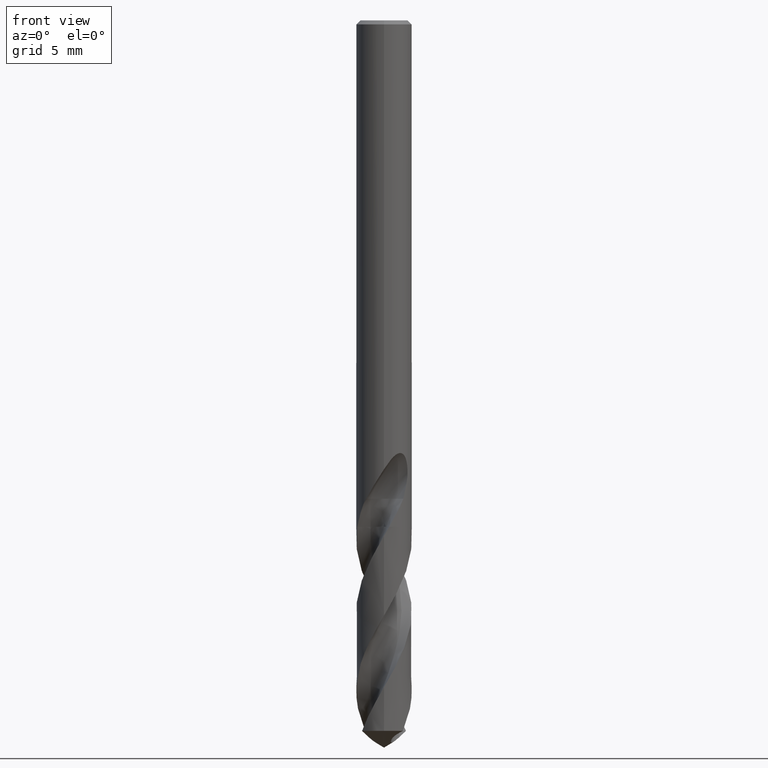
[diagram: clean part render]
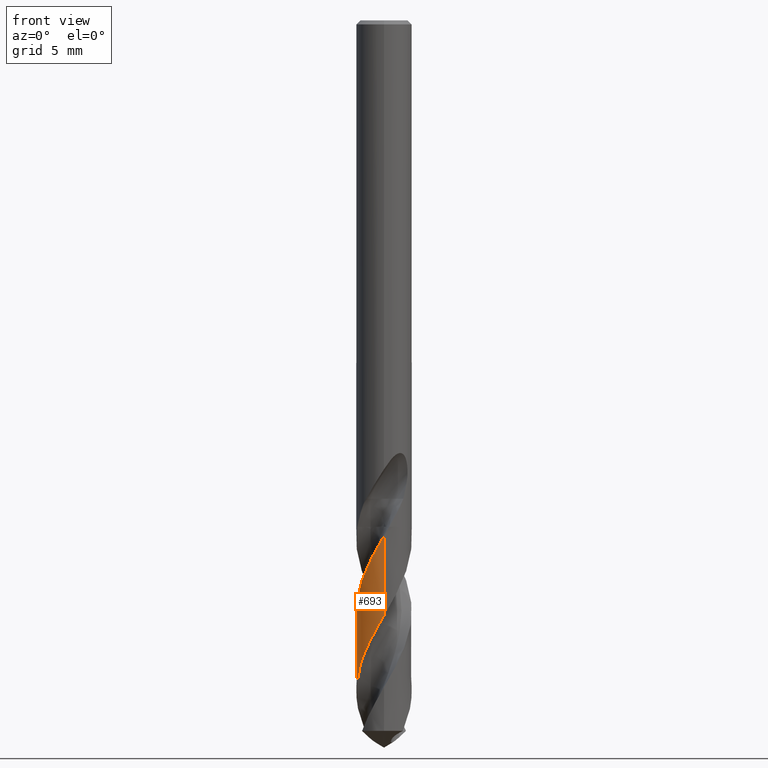
[diagram: same view with one face highlighted and labeled with its STEP entity id]
A machine part, front view. The second image highlights one B-rep face of the part: STEP entity #693.
In plain terms, the highlighted conical surface has half-angle 0 deg.
Its self-contained STEP definition (entity closure, byte-faithful):
#273=EDGE_CURVE('',#439,#403,#765,.T.);
#403=VERTEX_POINT('',#913);
#439=VERTEX_POINT('',#950);
#491=VERTEX_POINT('',#1006);
#565=EDGE_CURVE('',#725,#491,#1086,.T.);
#609=EDGE_CURVE('',#725,#701,#1131,.T.);
#631=EDGE_CURVE('',#403,#701,#1155,.T.);
#689=EDGE_CURVE('',#491,#439,#1219,.T.);
#693=ADVANCED_FACE('',(#1224),#1225,.T.);
#701=VERTEX_POINT('',#1233);
#725=VERTEX_POINT('',#1258);
#765=B_SPLINE_CURVE_WITH_KNOTS('',3,(#1292,#1293,#1294,#1295,#1296,#1297,#1298,#1299,#1300,#1301,#1302,#1303,#1304,#1305,#1306,#1307,#1308,#1309,#1310,#1311,#1312,#1313,#1314,#1315,#1316,#1317,#1318,#1319,#1320,#1321,#1322,#1323,#1324,#1325,#1326,#1327,#1328,#1329,#1330,#1331,#1332,#1333,#1334,#1335,#1336,#1337,#1338,#1339,#1340,#1341,#1342,#1343,#1344,#1345),.UNSPECIFIED.,.F.,.F.,(4,2,2,2,2,2,2,2,2,2,2,2,2,2,2,2,2,2,2,2,2,2,2,2,2,2,4),(0.0,0.503909517574483,1.13278829859474,1.95331177845155,2.7691083189169,3.17418708438028,3.98540678216723,4.80004578718783,5.61705186428529,5.81836232337109,6.62775542031261,7.44499740375023,8.26058421103626,8.66412830215472,9.47658145994464,10.2886939642005,11.1063820422001,11.2067594291098,12.0003007831243,12.7277738410954,13.3615420971519,14.4769491370103,14.8951127221257,15.626291945844,16.1753774852233,17.0001347180208,17.8248516723183),.UNSPECIFIED.);
#913=CARTESIAN_POINT('',(-1.80224234868949E-012,2.09997855743736,-50.4278485601338));
#950=CARTESIAN_POINT('',(-1.36379404528717E-014,-2.09990444357236,-38.9860072637857));
#1006=CARTESIAN_POINT('',(1.30074145295058E-014,-2.0999434989582,-45.0154529889263));
#1086=B_SPLINE_CURVE_WITH_KNOTS('',3,(#4738,#4739,#4740,#4741,#4742,#4743,#4744,#4745,#4746,#4747,#4748,#4749,#4750,#4751,#4752,#4753,#4754,#4755,#4756,#4757,#4758,#4759,#4760,#4761,#4762,#4763,#4764,#4765,#4766,#4767,#4768,#4769,#4770,#4771,#4772,#4773,#4774,#4775,#4776,#4777,#4778,#4779,#4780,#4781,#4782,#4783,#4784,#4785,#4786,#4787,#4788,#4789,#4790,#4791,#4792,#4793,#4794,#4795,#4796,#4797,#4798,#4799,#4800,#4801,#4802,#4803,#4804,#4805,#4806,#4807,#4808,#4809,#4810,#4811),.UNSPECIFIED.,.F.,.F.,(4,2,2,2,2,2,2,2,2,2,2,2,2,2,2,2,2,2,2,2,2,2,2,2,2,2,2,2,2,2,2,2,2,2,2,2,4),(0.0,1.23625972292761,1.28090321037564,1.97511493637118,2.3840890977892,2.79224867802999,3.47174308860152,3.8120364301856,4.15063406902024,4.83041698696505,5.170846193326,5.50962474233837,6.18969503071297,6.53030297834813,6.86930156829632,7.54976232675562,7.89055696891206,8.22975320464369,8.91059984628346,9.25161203428264,9.59105219666649,10.272348982676,10.6136108251922,10.9533446528941,11.6351623398099,11.9766777413867,12.3166696129387,12.9990374819741,13.3054847538729,13.8777061850719,14.884091522244,14.9310911833174,15.6738396568611,16.2313276549158,16.3356349820193,17.1189991023162,17.9004014585408),.UNSPECIFIED.);
#1131=CIRCLE('',#5145,2.1);
#1155=LINE('',#5218,#5219);
#1219=LINE('',#6485,#6486);
#1224=FACE_OUTER_BOUND('',#6491,.T.);
#1225=CONICAL_SURFACE('',#6492,2.09995,6.47744214246915E-006);
#1233=CARTESIAN_POINT('',(-2.56672861744003E-016,2.1,-53.7381927000421));
#1258=CARTESIAN_POINT('',(-1.42649737981016,1.54113763999026,-53.7381927000421));
#1292=CARTESIAN_POINT('',(0.390569997594199,-2.06325839454656,-38.3042526002693));
#1293=CARTESIAN_POINT('',(0.308017328981765,-2.07888638085567,-38.449699119055));
#1294=CARTESIAN_POINT('',(0.224716797414785,-2.08952430822792,-38.5951383021161));
#1295=CARTESIAN_POINT('',(0.0367738684099087,-2.10218470287974,-38.9223348117959));
#1296=CARTESIAN_POINT('',(-0.0679943574266461,-2.10141253859432,-39.1038875286953));
#1297=CARTESIAN_POINT('',(-0.308420420629415,-2.08161981260738,-39.5224390327178));
#1298=CARTESIAN_POINT('',(-0.443125251478291,-2.05716336356693,-39.7583208125454));
#1299=CARTESIAN_POINT('',(-0.705158400106131,-1.98263238746144,-40.2307940643223));
#1300=CARTESIAN_POINT('',(-0.831902417006057,-1.93288220866722,-40.4658503427265));
#1301=CARTESIAN_POINT('',(-1.0130741240081,-1.84061942150497,-40.8183438752922));
#1302=CARTESIAN_POINT('',(-1.07165398331752,-1.80713978354698,-40.9351926608393));
#1303=CARTESIAN_POINT('',(-1.24236193478339,-1.6983594475139,-41.2864610908847));
#1304=CARTESIAN_POINT('',(-1.34899979536947,-1.61496761203563,-41.5203685107646));
#1305=CARTESIAN_POINT('',(-1.54524320417646,-1.42839463975181,-41.9898332983309));
#1306=CARTESIAN_POINT('',(-1.63425164651977,-1.32562957028781,-42.2243981313254));
#1307=CARTESIAN_POINT('',(-1.79139311922352,-1.10412984435196,-42.6956394447378));
#1308=CARTESIAN_POINT('',(-1.8591471768903,-0.985797808151183,-42.930975937371));
#1309=CARTESIAN_POINT('',(-1.92875098901316,-0.831118518378167,-43.2250018358748));
#1310=CARTESIAN_POINT('',(-1.94177287670343,-0.800223200289188,-43.2831057114801));
#1311=CARTESIAN_POINT('',(-2.00340353928966,-0.643630058372398,-43.5750011538261));
#1312=CARTESIAN_POINT('',(-2.04058122880582,-0.513741692568061,-43.8084848827808));
#1313=CARTESIAN_POINT('',(-2.08976059917131,-0.247325392888569,-44.2782629886076));
#1314=CARTESIAN_POINT('',(-2.10139018086837,-0.11142495336553,-44.5135340097885));
#1315=CARTESIAN_POINT('',(-2.09820825033845,0.160363000775788,-44.9851936857589));
#1316=CARTESIAN_POINT('',(-2.08345659791678,0.295700461871953,-45.2202185243422));
#1317=CARTESIAN_POINT('',(-2.04199424879412,0.494527167725195,-45.5722820178483));
#1318=CARTESIAN_POINT('',(-2.02512257635464,0.55961889771996,-45.6887212518613));
#1319=CARTESIAN_POINT('',(-1.9649898299328,0.752928517137824,-46.0399799950333));
#1320=CARTESIAN_POINT('',(-1.91241331019603,0.877947662392781,-46.2742468743428));
#1321=CARTESIAN_POINT('',(-1.78391237756426,1.11614103097192,-46.7434441908355));
#1322=CARTESIAN_POINT('',(-1.70833866832319,1.22868832413268,-46.9774472691566));
#1323=CARTESIAN_POINT('',(-1.53608485396776,1.43833375736206,-47.448269252438));
#1324=CARTESIAN_POINT('',(-1.43960923739679,1.53490051405826,-47.6838124251385));
#1325=CARTESIAN_POINT('',(-1.32150722229206,1.63209706794024,-47.9489523292886));
#1326=CARTESIAN_POINT('',(-1.30847043446765,1.64256749154625,-47.9779373287673));
#1327=CARTESIAN_POINT('',(-1.1912730174795,1.73441352718902,-48.2361479499733));
#1328=CARTESIAN_POINT('',(-1.0797589536874,1.80594882725479,-48.4651641484731));
#1329=CARTESIAN_POINT('',(-0.854553728601669,1.92205407898775,-48.9045503267968));
#1330=CARTESIAN_POINT('',(-0.742261005782644,1.96814586874391,-49.1140479251563));
#1331=CARTESIAN_POINT('',(-0.525909641333397,2.03579030658126,-49.507339454028));
#1332=CARTESIAN_POINT('',(-0.422928295383579,2.05965249761215,-49.6902925328945));
#1333=CARTESIAN_POINT('',(-0.134908088137453,2.10386084279632,-50.1956201899306));
#1334=CARTESIAN_POINT('',(0.0516646706071843,2.10754555445554,-50.5163525505894));
#1335=CARTESIAN_POINT('',(0.30543875794485,2.07881726228552,-50.9594372772372));
#1336=CARTESIAN_POINT('',(0.37422279021143,2.06754445777166,-51.0801652060103));
#1337=CARTESIAN_POINT('',(0.56144113566867,2.02720611613326,-51.4121744287994));
#1338=CARTESIAN_POINT('',(0.678040337001556,1.9912372771231,-51.6229029169465));
#1339=CARTESIAN_POINT('',(0.875520498819515,1.91096184146802,-51.9928350238206));
#1340=CARTESIAN_POINT('',(0.957902075011818,1.87102879249249,-52.1513464301706));
#1341=CARTESIAN_POINT('',(1.15690667055529,1.75795759471379,-52.5482463852867));
#1342=CARTESIAN_POINT('',(1.26941257733474,1.67852228734416,-52.7858535933192));
#1343=CARTESIAN_POINT('',(1.47725957618053,1.49885310389707,-53.2624188558046));
#1344=CARTESIAN_POINT('',(1.57214712188489,1.39901384181612,-53.4999757726785));
#1345=CARTESIAN_POINT('',(1.65662077604711,1.29058421049116,-53.7381927000421));
#4738=CARTESIAN_POINT('',(-1.42649737981016,1.54113763999026,-53.7381927000421));
#4739=CARTESIAN_POINT('',(-1.57695963547069,1.40186463132384,-53.3807301378004));
#4740=CARTESIAN_POINT('',(-1.70625555040632,1.24129005580703,-53.0293134092204));
#4741=CARTESIAN_POINT('',(-1.81403925200662,1.05796369603176,-52.6594367115552));
#4742=CARTESIAN_POINT('',(-1.81775758415094,1.05156197003925,-52.6465537494186));
#4743=CARTESIAN_POINT('',(-1.87879164116603,0.945189935453131,-52.4332394713616));
#4744=CARTESIAN_POINT('',(-1.92791238872987,0.840527311451122,-52.2338000763874));
#4745=CARTESIAN_POINT('',(-1.99198013429963,0.66828655964907,-51.9157455652368));
#4746=CARTESIAN_POINT('',(-2.01258782056809,0.603374998298269,-51.7980066051716));
#4747=CARTESIAN_POINT('',(-2.04737025013092,0.472039583868538,-51.5622762686134));
#4748=CARTESIAN_POINT('',(-2.06153181722622,0.405726798596233,-51.444209904945));
#4749=CARTESIAN_POINT('',(-2.09066250873509,0.227553600222249,-51.1305784864097));
#4750=CARTESIAN_POINT('',(-2.09988608488912,0.114830844412168,-50.9356141501241));
#4751=CARTESIAN_POINT('',(-2.10002678840179,-0.0548590825056493,-50.6418465304335));
#4752=CARTESIAN_POINT('',(-2.0977834526929,-0.111399099600811,-50.5439079645802));
#4753=CARTESIAN_POINT('',(-2.0887800573786,-0.223754302804554,-50.3481971439892));
#4754=CARTESIAN_POINT('',(-2.08204988465575,-0.279516762296138,-50.2503728293071));
#4755=CARTESIAN_POINT('',(-2.05509471999118,-0.446323204897777,-49.9568442280061));
#4756=CARTESIAN_POINT('',(-2.02814153083882,-0.55616234144262,-49.761871057212));
#4757=CARTESIAN_POINT('',(-1.97453338334247,-0.717152402691944,-49.4681023610114));
#4758=CARTESIAN_POINT('',(-1.95449948014606,-0.770067979609093,-49.3701643658867));
#4759=CARTESIAN_POINT('',(-1.91037407804928,-0.873789214607527,-49.1744441489832));
#4760=CARTESIAN_POINT('',(-1.88632768804101,-0.924552415493039,-49.0766078507017));
#4761=CARTESIAN_POINT('',(-1.80793616589045,-1.07422082498457,-48.7830796780434));
#4762=CARTESIAN_POINT('',(-1.74758831670783,-1.16986200662086,-48.5881162685079));
#4763=CARTESIAN_POINT('',(-1.64575179937315,-1.30558769415783,-48.2943594190237));
#4764=CARTESIAN_POINT('',(-1.60998647372268,-1.34943891313401,-48.1964196726624));
#4765=CARTESIAN_POINT('',(-1.5352677527402,-1.43386168437587,-48.0006855557121));
#4766=CARTESIAN_POINT('',(-1.49637147739585,-1.47440516464981,-47.9028367535178));
#4767=CARTESIAN_POINT('',(-1.37460150306921,-1.59154756824184,-47.6092976532267));
#4768=CARTESIAN_POINT('',(-1.28706411952831,-1.66315261858641,-47.4143303838959));
#4769=CARTESIAN_POINT('',(-1.14747920193266,-1.75963568325722,-47.1205693471303));
#4770=CARTESIAN_POINT('',(-1.09966634789741,-1.78990047717287,-47.0226295947384));
#4771=CARTESIAN_POINT('',(-1.00205445191026,-1.84631023083157,-46.8268918845728));
#4772=CARTESIAN_POINT('',(-0.952320200401932,-1.87244537355205,-46.7290378486443));
#4773=CARTESIAN_POINT('',(-0.799737722758124,-1.94497735502705,-46.4355074348213));
#4774=CARTESIAN_POINT('',(-0.694039659141798,-1.98516645669107,-46.2405493375742));
#4775=CARTESIAN_POINT('',(-0.531090397208035,-2.0324707402636,-45.9467992683771));
#4776=CARTESIAN_POINT('',(-0.476152581357892,-2.04603440922365,-45.8488592666883));
#4777=CARTESIAN_POINT('',(-0.365691401625201,-2.06862591830022,-45.6531140652609));
#4778=CARTESIAN_POINT('',(-0.310234439931019,-2.07766407178698,-45.5552520053569));
#4779=CARTESIAN_POINT('',(-0.142543848924141,-2.09813363643255,-45.2617241016337));
#4780=CARTESIAN_POINT('',(-0.0295639803973534,-2.10277684309451,-45.0667692676582));
#4781=CARTESIAN_POINT('',(0.139979429174032,-2.09603637315916,-44.7730259432923));
#4782=CARTESIAN_POINT('',(0.196389143239131,-2.09150139697624,-44.6750840143884));
#4783=CARTESIAN_POINT('',(0.308337346441052,-2.07794153230446,-44.4793242643663));
#4784=CARTESIAN_POINT('',(0.363814668173169,-2.06894687649886,-44.3814487632646));
#4785=CARTESIAN_POINT('',(0.529365127776661,-2.03524565665478,-44.0879104788328));
#4786=CARTESIAN_POINT('',(0.638001273951082,-2.00386314295443,-43.892957283783));
#4787=CARTESIAN_POINT('',(0.796682304129024,-1.94376647189027,-43.5992149602957));
#4788=CARTESIAN_POINT('',(0.848750680606152,-1.92159752429602,-43.5012747695548));
#4789=CARTESIAN_POINT('',(0.95063900341459,-1.8732769404577,-43.3055158646224));
#4790=CARTESIAN_POINT('',(1.00040865782058,-1.84717396744679,-43.2076387821707));
#4791=CARTESIAN_POINT('',(1.1467372927549,-1.76278481504455,-42.9141083507414));
#4792=CARTESIAN_POINT('',(1.23982916951966,-1.6986177372859,-42.7191514709198));
#4793=CARTESIAN_POINT('',(1.36675679244264,-1.59506914965465,-42.4355529934564));
#4794=CARTESIAN_POINT('',(1.4048834541671,-1.56158927664003,-42.3477257732288));
#4795=CARTESIAN_POINT('',(1.51053552159147,-1.46182119641447,-42.0955757400566));
#4796=CARTESIAN_POINT('',(1.57486522320521,-1.39228274341314,-41.9307783594397));
#4797=CARTESIAN_POINT('',(1.73894949831119,-1.18889682789988,-41.4776906637322));
#4798=CARTESIAN_POINT('',(1.82759557979525,-1.04744037054761,-41.1917716660326));
#4799=CARTESIAN_POINT('',(1.90186839551696,-0.89028489895096,-40.88918144816));
#4800=CARTESIAN_POINT('',(1.90514046053453,-0.883261102672644,-40.8756862192091));
#4801=CARTESIAN_POINT('',(1.95957074018127,-0.764708205626058,-40.6486107350995));
#4802=CARTESIAN_POINT('',(2.00098897614421,-0.648732277655782,-40.4361828595708));
#4803=CARTESIAN_POINT('',(2.05536191675618,-0.440071439084963,-40.0629066325811));
#4804=CARTESIAN_POINT('',(2.0727055673299,-0.349300466914093,-39.903281590152));
#4805=CARTESIAN_POINT('',(2.08613851731232,-0.240711331524891,-39.7130980923928));
#4806=CARTESIAN_POINT('',(2.08804369774982,-0.223583452944534,-39.6831201714541));
#4807=CARTESIAN_POINT('',(2.10249099718927,-0.0772865685181711,-39.4277155897356));
#4808=CARTESIAN_POINT('',(2.10325881656201,0.0528018798612655,-39.2040537662504));
#4809=CARTESIAN_POINT('',(2.08073285853896,0.311351533702633,-38.7542039027651));
#4810=CARTESIAN_POINT('',(2.05766511398071,0.438374291294746,-38.5282681163619));
#4811=CARTESIAN_POINT('',(2.02318675090137,0.562401559440356,-38.3048920733307));
#5145=AXIS2_PLACEMENT_3D('',#7210,#7211,#7212);
#5218=CARTESIAN_POINT('',(-2.56666738712233E-016,2.09995,-46.0190963500211));
#5219=VECTOR('',#7236,1.0);
#6485=CARTESIAN_POINT('',(2.57655683829627E-016,-2.09995,-46.0190963500211));
#6486=VECTOR('',#7311,1.0);
#6491=EDGE_LOOP('',(#7321,#7322,#7323,#7324,#7325));
#6492=AXIS2_PLACEMENT_3D('',#7326,#7327,#7328);
#7210=CARTESIAN_POINT('',(0.0,0.0,-53.7381927000421));
#7211=DIRECTION('',(0.0,0.0,-1.0));
#7212=DIRECTION('',(0.0,1.0,0.0));
#7236=DIRECTION('',(-7.93231680412909E-022,6.47744214242386E-006,-0.999999999979021));
#7311=DIRECTION('',(-7.93231680412909E-022,6.47744214242386E-006,0.999999999979021));
#7321=ORIENTED_EDGE('',*,*,#631,.T.);
#7322=ORIENTED_EDGE('',*,*,#609,.F.);
#7323=ORIENTED_EDGE('',*,*,#565,.T.);
#7324=ORIENTED_EDGE('',*,*,#689,.T.);
#7325=ORIENTED_EDGE('',*,*,#273,.T.);
#7326=CARTESIAN_POINT('',(0.0,0.0,-46.0190963500211));
#7327=DIRECTION('',(0.0,-0.0,-1.0));
#7328=DIRECTION('',(0.0,1.0,0.0));